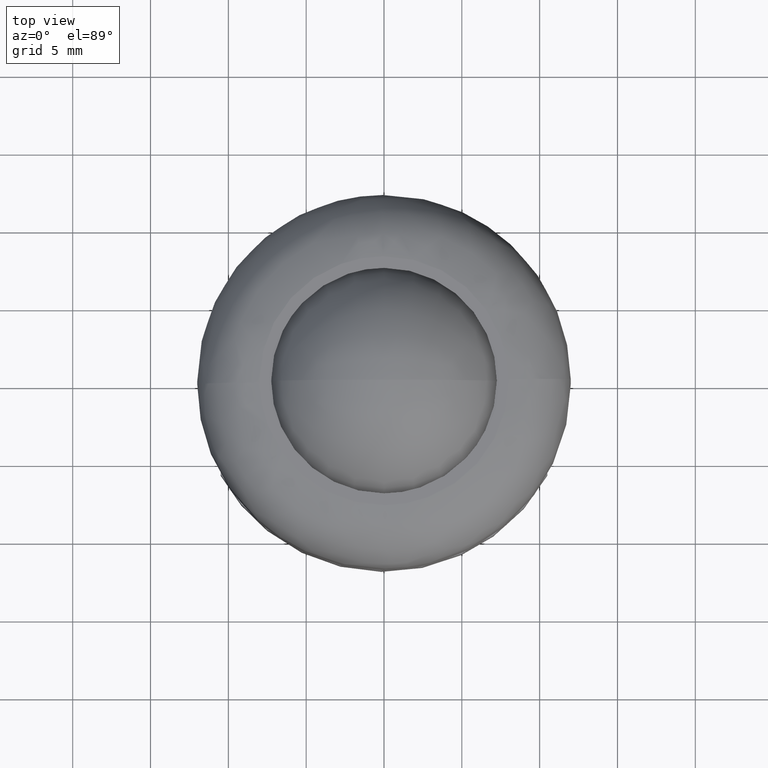
[diagram: clean part render]
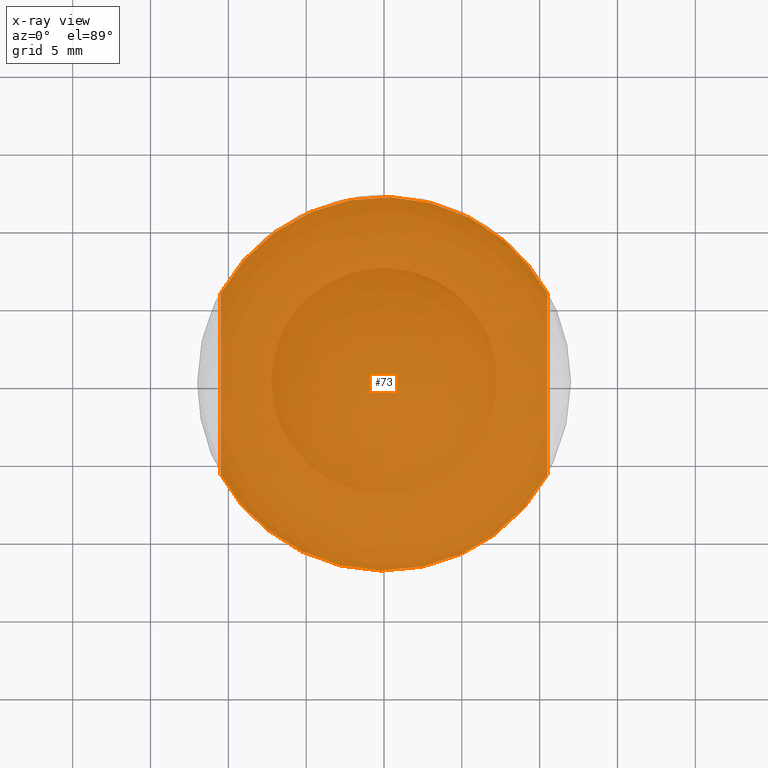
[diagram: x-ray — body ghosted, one internal face saturated and labeled with its STEP entity id]
A machine part, top view, then the same camera in x-ray: the body is ghosted and one INTERNAL B-rep face — a face not visible from any outside direction — is saturated and labeled: STEP entity #73.
In plain terms, the highlighted face is a freeform B-spline surface patch.
Its self-contained STEP definition (entity closure, byte-faithful):
#5=CARTESIAN_POINT('',(-11.548949959297930,-13.198816946414670,0.0));
#6=CARTESIAN_POINT('',(11.548950522561819,-13.198816946414670,0.0));
#7=CARTESIAN_POINT('',(-11.548949959297930,13.198817590144850,0.0));
#8=CARTESIAN_POINT('',(11.548950522561819,13.198817590144850,0.0));
#9=B_SPLINE_SURFACE_WITH_KNOTS('',1,1,((#5,#7),(#6,#8)),.UNSPECIFIED.,.F.,.F.,.U.,(2,2),(2,2),(0.0,23.097900481859750),(0.0,26.397634536559519),.UNSPECIFIED.);
#10=CARTESIAN_POINT('',(-10.500000000000000,5.809475019311110,0.0));
#11=VERTEX_POINT('',#10);
#12=CARTESIAN_POINT('',(10.500000000000000,5.809475019311150,0.0));
#13=VERTEX_POINT('',#12);
#14=CARTESIAN_POINT('',(-10.500000000000000,5.809475019311110,0.0));
#15=CARTESIAN_POINT('',(-10.209891866521589,6.333882347705153,0.0));
#16=CARTESIAN_POINT('',(-9.605777958105820,7.255310497847886,0.0));
#17=CARTESIAN_POINT('',(-8.574735666877446,8.436536971816693,0.0));
#18=CARTESIAN_POINT('',(-7.434063438216991,9.462474222188257,0.0));
#19=CARTESIAN_POINT('',(-6.114898151966409,10.371725192057090,0.0));
#20=CARTESIAN_POINT('',(-4.680667959750983,11.085809693708059,0.0));
#21=CARTESIAN_POINT('',(-3.325303309309611,11.554494256123760,0.0));
#22=CARTESIAN_POINT('',(-1.797900846446788,11.903727515335250,0.0));
#23=CARTESIAN_POINT('',(-0.199774788384279,12.043740234641700,0.0));
#24=CARTESIAN_POINT('',(1.731336934046038,11.923038962506309,0.0));
#25=CARTESIAN_POINT('',(3.625316272608648,11.506668311562040,0.0));
#26=CARTESIAN_POINT('',(5.445085802727597,10.747134679412611,0.0));
#27=CARTESIAN_POINT('',(7.010314481782009,9.788819024922605,0.0));
#28=CARTESIAN_POINT('',(8.193990404904124,8.810152229362334,0.0));
#29=CARTESIAN_POINT('',(9.427722369476099,7.499224327386478,0.0));
#30=CARTESIAN_POINT('',(10.113244700389069,6.508732446286602,0.0));
#31=CARTESIAN_POINT('',(10.500000000000000,5.809475019311150,0.0));
#32=B_SPLINE_CURVE_WITH_KNOTS('',3,(#14,#15,#16,#17,#18,#19,#20,#21,#22,#23,#24,#25,#26,#27,#28,#29,#30,#31),.UNSPECIFIED.,.F.,.U.,(4,1,1,1,1,1,1,1,1,1,1,1,1,1,1,4),(8.897835E-009,1.797912602711968,3.296186892936774,4.694584629038069,6.392633846683260,8.090678238406341,9.489080168373040,10.687689903769240,12.785267025864950,14.283531010625399,16.481004867715448,18.578590696181990,20.176752487453491,21.974690458298308,23.173300524347361,25.570533412326530),.UNSPECIFIED.);
#33=EDGE_CURVE('',#11,#13,#32,.T.);
#34=ORIENTED_EDGE('',*,*,#33,.F.);
#35=CARTESIAN_POINT('',(-10.500000000000000,-5.809475019311050,0.0));
#36=VERTEX_POINT('',#35);
#37=CARTESIAN_POINT('',(-10.500000000000000,5.809475019311110,0.0));
#38=CARTESIAN_POINT('',(-10.500000000000000,-5.809475019311050,0.0));
#39=QUASI_UNIFORM_CURVE('',1,(#37,#38),.UNSPECIFIED.,.F.,.U.);
#40=EDGE_CURVE('',#11,#36,#39,.T.);
#41=ORIENTED_EDGE('',*,*,#40,.T.);
#42=CARTESIAN_POINT('',(10.500000000000000,-5.809475019311140,0.0));
#43=VERTEX_POINT('',#42);
#44=CARTESIAN_POINT('',(10.500000000000000,-5.809475019311140,0.0));
#45=CARTESIAN_POINT('',(10.209897644275550,-6.333886693334643,0.0));
#46=CARTESIAN_POINT('',(9.678991027976645,-7.143611496187610,0.0));
#47=CARTESIAN_POINT('',(8.754647885251259,-8.238869655703386,0.0));
#48=CARTESIAN_POINT('',(7.600726776383098,-9.348511302094430,0.0));
#49=CARTESIAN_POINT('',(6.176930133610059,-10.347439606306560,0.0));
#50=CARTESIAN_POINT('',(4.617617070735247,-11.107593382216630,0.0));
#51=CARTESIAN_POINT('',(3.325304600873533,-11.554501171965830,0.0));
#52=CARTESIAN_POINT('',(1.862893014349058,-11.888841442630721,0.0));
#53=CARTESIAN_POINT('',(0.333581777956327,-12.035687082454171,0.0));
#54=CARTESIAN_POINT('',(-1.465965036501114,-11.953236532050580,0.0));
#55=CARTESIAN_POINT('',(-3.073155588674375,-11.641761037647189,0.0));
#56=CARTESIAN_POINT('',(-4.491539036379357,-11.151187131893950,0.0));
#57=CARTESIAN_POINT('',(-5.729655134957904,-10.572860459533480,0.0));
#58=CARTESIAN_POINT('',(-6.896471800895561,-9.858507501597766,0.0));
#59=CARTESIAN_POINT('',(-7.990723692694821,-8.984008472027593,0.0));
#60=CARTESIAN_POINT('',(-9.267454650186375,-7.714916971892152,0.0));
#61=CARTESIAN_POINT('',(-10.048856116659181,-6.625326104247192,0.0));
#62=CARTESIAN_POINT('',(-10.500000000000000,-5.809475019311050,0.0));
#63=B_SPLINE_CURVE_WITH_KNOTS('',3,(#44,#45,#46,#47,#48,#49,#50,#51,#52,#53,#54,#55,#56,#57,#58,#59,#60,#61,#62),.UNSPECIFIED.,.F.,.U.,(4,1,1,1,1,1,1,1,1,1,1,1,1,1,1,1,4),(8.902322E-009,1.797912602716149,2.896647512785947,4.295049562321530,6.592404278317126,8.090678238409247,9.489080168375581,10.687689903771521,12.585500492175850,14.083763953951360,16.081457093829979,17.479848755999761,18.578590696182751,20.176752487453950,21.575149138582969,22.773765831327179,25.570533412326569),.UNSPECIFIED.);
#64=EDGE_CURVE('',#43,#36,#63,.T.);
#65=ORIENTED_EDGE('',*,*,#64,.F.);
#66=CARTESIAN_POINT('',(10.500000000000000,-5.809475019311140,0.0));
#67=CARTESIAN_POINT('',(10.500000000000000,5.809475019311150,0.0));
#68=QUASI_UNIFORM_CURVE('',1,(#66,#67),.UNSPECIFIED.,.F.,.U.);
#69=EDGE_CURVE('',#43,#13,#68,.T.);
#70=ORIENTED_EDGE('',*,*,#69,.T.);
#71=EDGE_LOOP('',(#34,#41,#65,#70));
#72=FACE_OUTER_BOUND('',#71,.T.);
#73=ADVANCED_FACE('',(#72),#9,.T.);